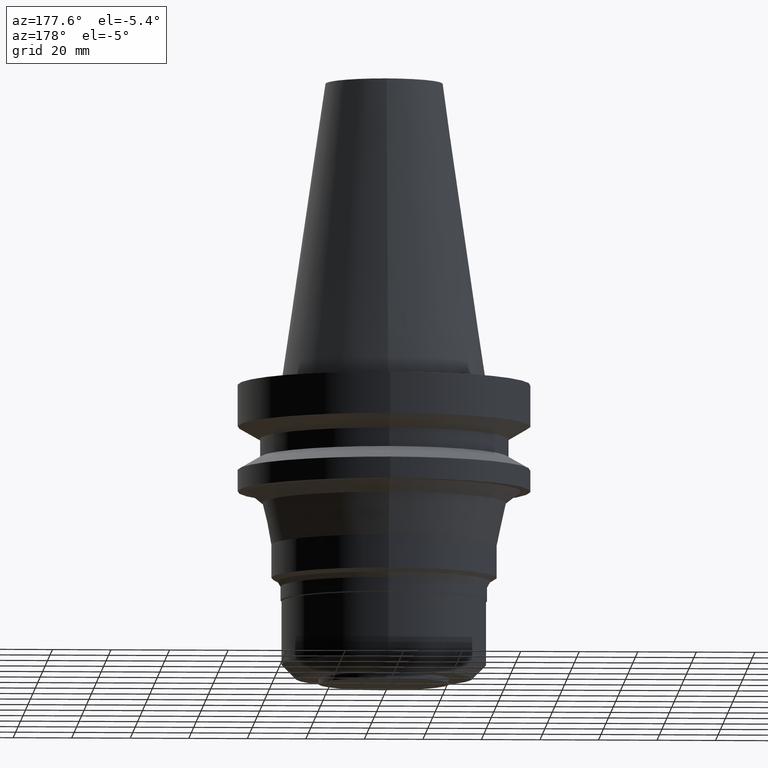
[diagram: clean part render]
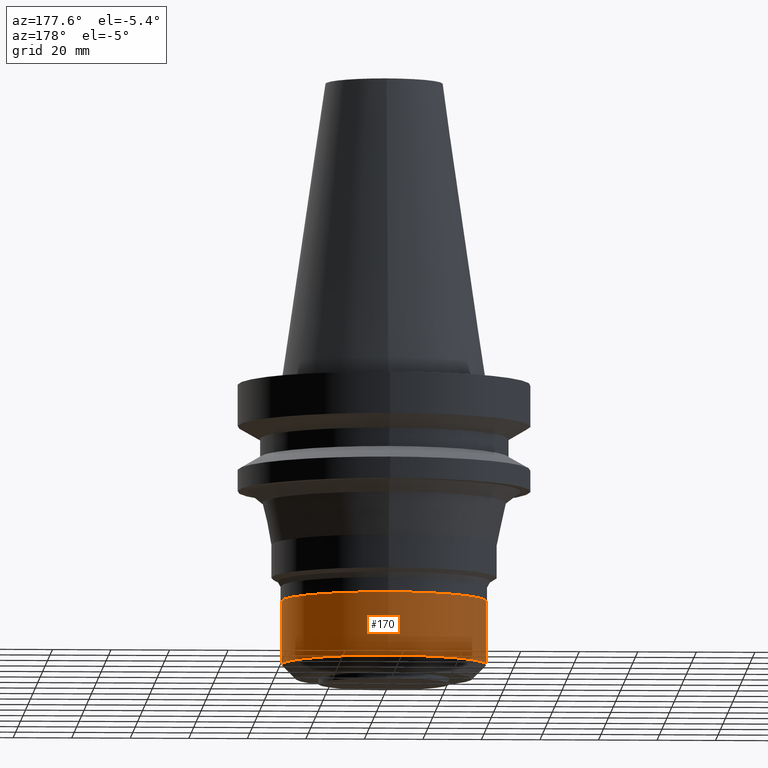
[diagram: same view with one face highlighted and labeled with its STEP entity id]
A machine part, auxiliary view. The second image highlights one B-rep face of the part: STEP entity #170.
In plain terms, the highlighted cylindrical surface (bore or boss wall) has radius 35 mm, axis along (0, 0, -1).
Its self-contained STEP definition (entity closure, byte-faithful):
#76=EDGE_CURVE('Unnamed[1]',#208,#208,#209,.T.);
#99=EDGE_CURVE('Unnamed[1]',#244,#244,#245,.T.);
#170=ADVANCED_FACE('Unnamed[1]',(#354,#355),#356,.T.);
#208=VERTEX_POINT('',#392);
#209=CIRCLE('',#393,35.0000000000001);
#244=VERTEX_POINT('',#437);
#245=CIRCLE('',#438,34.9999999999999);
#354=FACE_BOUND('',#574,.T.);
#355=FACE_BOUND('',#575,.T.);
#356=CYLINDRICAL_SURFACE('',#576,35.0);
#392=CARTESIAN_POINT('',(4.63222651777481E-015,35.0000000000001,-75.6499999999992));
#393=AXIS2_PLACEMENT_3D('',#607,#608,#609);
#437=CARTESIAN_POINT('',(5.95946168478826E-015,35.0,-97.325395190474));
#438=AXIS2_PLACEMENT_3D('',#648,#649,#650);
#574=EDGE_LOOP('',(#769));
#575=EDGE_LOOP('',(#770));
#576=AXIS2_PLACEMENT_3D('',#771,#772,#773);
#607=CARTESIAN_POINT('',(4.63222651777482E-015,9.26445303554963E-015,-75.6499999999992));
#608=DIRECTION('',(6.12323399573677E-017,1.22464679914708E-016,-1.0));
#609=DIRECTION('',(-1.23259516440783E-032,1.0,1.22464679914708E-016));
#648=CARTESIAN_POINT('',(5.95946168478826E-015,1.19189233695765E-014,-97.325395190474));
#649=DIRECTION('',(6.12323399573676E-017,1.22464679914709E-016,-1.0));
#650=DIRECTION('',(-1.23259516440783E-032,1.0,1.22464679914709E-016));
#769=ORIENTED_EDGE('',*,*,#99,.F.);
#770=ORIENTED_EDGE('',*,*,#76,.T.);
#771=CARTESIAN_POINT('',(5.29584410128154E-015,1.05916882025631E-014,-86.4876975952366));
#772=DIRECTION('',(6.12323399573677E-017,1.22464679914708E-016,-1.0));
#773=DIRECTION('',(-1.23259516440783E-032,1.0,1.22464679914708E-016));